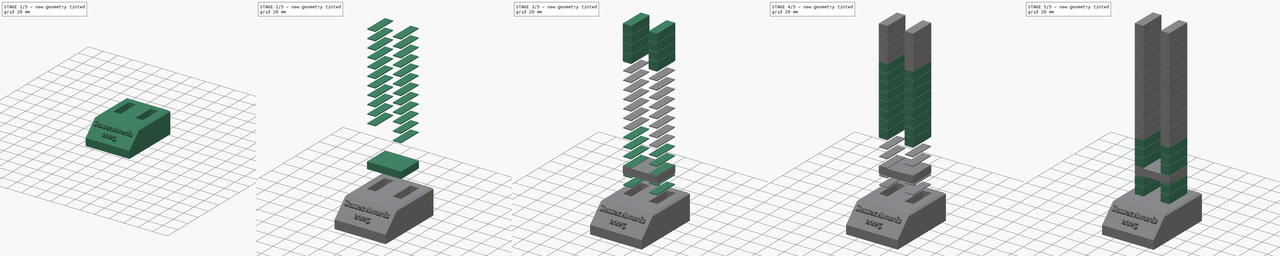
[diagram: build sequence overview — one tinted view per stage of 5, left to right]
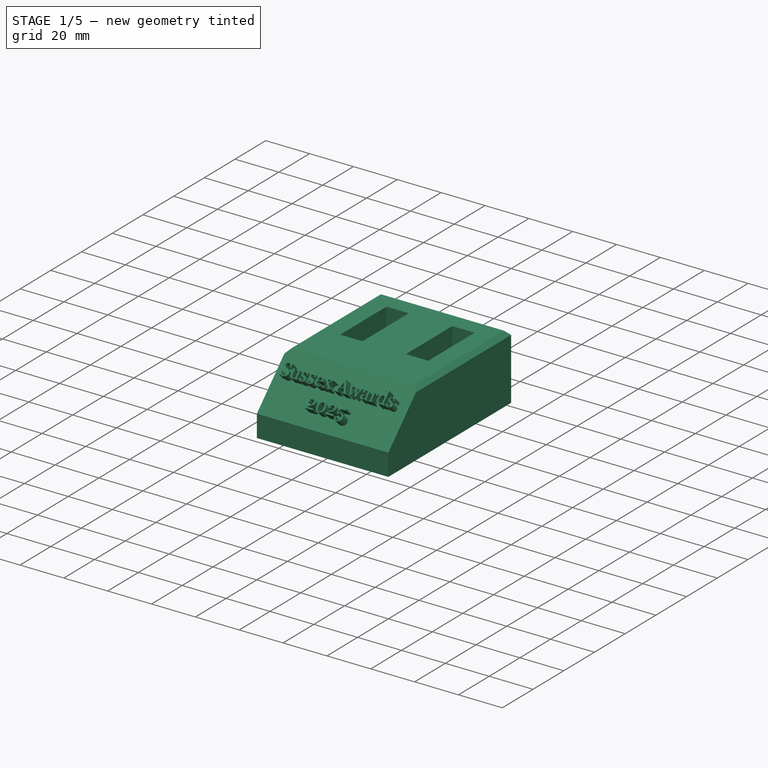
[diagram: stage 1 of 5 — iso view after this stage's code; geometry added in this stage tinted green]
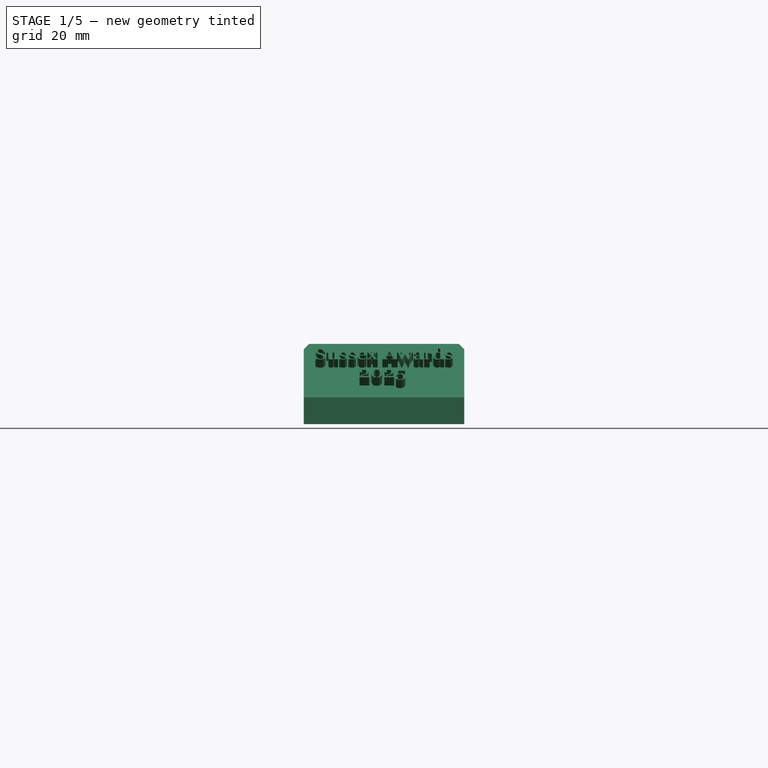
[diagram: stage 1 of 5 — front view after this stage's code; geometry added in this stage tinted green]
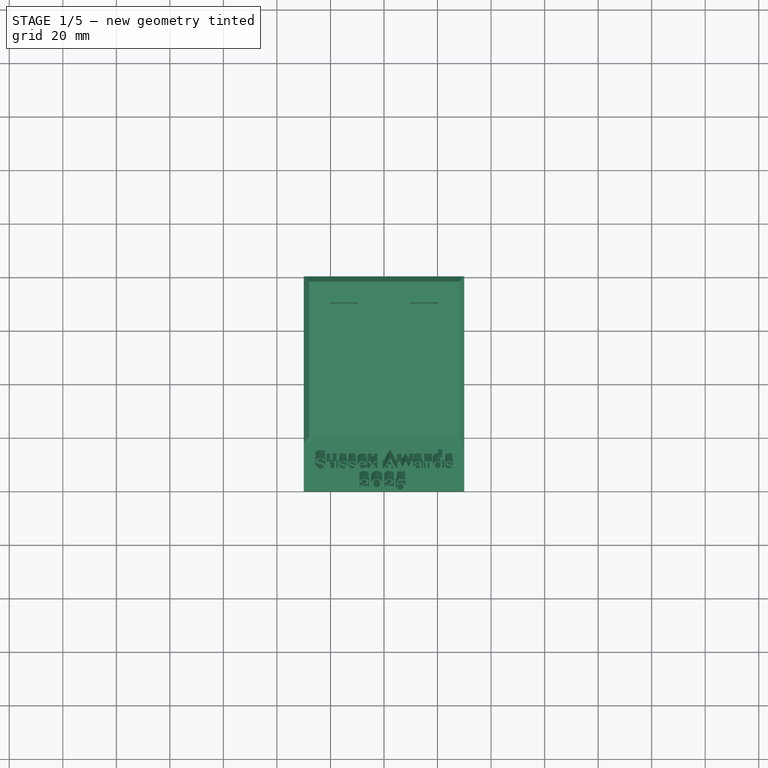
[diagram: stage 1 of 5 — top view after this stage's code; geometry added in this stage tinted green]
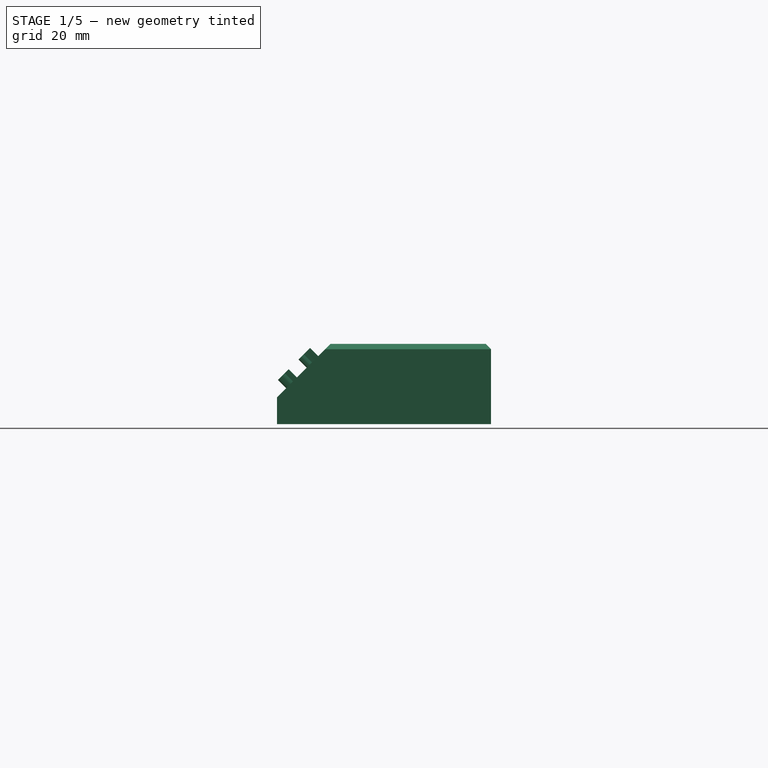
[diagram: stage 1 of 5 — right view after this stage's code; geometry added in this stage tinted green]
FCSTD DOCUMENT  (FreeCAD 1.0R39109 (Git))
Label: prize_blank
License: All rights reserved
LicenseURL: https://en.wikipedia.org/wiki/All_rights_reserved
objects: Part::Box×79, Part::Fuse×24, Part::Cut×6, Part::Part2DObjectPython×4, Part::Extrusion×4, Part::MultiFuse×3, Part::Chamfer×2, Part::Compound×2, Sketcher::SketchObject×1
note: 126 computed .brp shape members not serialized (recipe doc carries the construction recipe); baked Part::Feature solids carry a one-line shape summary decoded from their .brp

FEATURE [Part::Box] Box  label="Cube"
  AttacherType = Attacher::AttachEngine3D
  Height = 30
  Length = 60
  Placement = pos=(-10,-40,-29.5) rot=(0,0,1;0rad)
  Width = 80
FEATURE [Part::Chamfer] Chamfer
  Base = -> Box
  EdgeLinks = -> Box [Edge2,Edge6,Edge10,Edge12]
  Edges = 4 edges: [Edge2 r=2,Edge6 r=2,Edge10 r=20,Edge12 r=2]
FEATURE [Part::Box] cube
  AttacherType = Attacher::AttachEngine3D
  Height = 20
  Length = 10.2
  Width = 30.2
FEATURE [Part::Box] cube142
  AttacherType = Attacher::AttachEngine3D
  Height = 20
  Length = 10.2
  Placement = pos=(30,0,0) rot=(0,0,1;0rad)
  Width = 30.2
FEATURE [Part::Fuse] Matrix_Union  label="holes"
  Base = -> cube
  Placement = pos=(0,0,-19.5) rot=(0,0,1;0rad)
  Tool = -> cube142
FEATURE [Part::Cut] Cut
  Base = -> Chamfer
  Tool = -> Matrix_Union
FEATURE [Part::Fuse] Matrix_Union055  label="holes001"
  Base = -> cube
  Placement = pos=(0,0,-19.8) rot=(0,0,1;0rad)
  Tool = -> cube142
FEATURE [Part::Cut] Cut001
  Base = -> Cut
  Tool = -> Matrix_Union055
FEATURE [Part::Part2DObjectPython] ShapeString001  label="sussex_awards"  # Draft 2D object (typed FeaturePython)
  FontFile = <path>
  Fuse = false
  Justification = 6
  JustificationReference = 0
  KeepLeftMargin = false
  MakeFace = true
  ObliqueAngle = 0
  Placement = pos=(23.85,-91.65,0) rot=(0,0,1;0rad)
  ScaleToSize = true
  Size = 5.5
  String = Sussex Awards
  Tracking = 0
FEATURE [Part::Part2DObjectPython] ShapeString002  label="2025"  # Draft 2D object (typed FeaturePython)
  FontFile = <path>
  Fuse = false
  Justification = 6
  JustificationReference = 0
  KeepLeftMargin = false
  MakeFace = true
  ObliqueAngle = 0
  Placement = pos=(23.85,-91.65,-1) rot=(0,0,1;0rad)
  ScaleToSize = true
  Size = 5.5
  String = 2025
  Tracking = 0
FEATURE [Part::Extrusion] Extrude  label="sussex_awards_extrude"
  Base = -> ShapeString001
  Dir = (0,0,1)
  DirMode = 2
  FaceMakerClass = Part::FaceMakerBullseye
  FaceMakerMode = 3
  LengthFwd = 5
  LengthRev = 0
  Placement = pos=(-29.5,36.5,56) rot=(1,0,0;0.785398rad)
  Solid = false
  Symmetric = false
FEATURE [Part::Extrusion] Extrude001  label="2025_extrude"
  Base = -> ShapeString002
  Dir = (0,0,1)
  DirMode = 2
  FaceMakerClass = Part::FaceMakerBullseye
  FaceMakerMode = 3
  LengthFwd = 5
  LengthRev = 0
  Placement = pos=(-13,29,50) rot=(1,0,0;0.785398rad)
  Solid = false
  Symmetric = false
FEATURE [Sketcher::SketchObject] Sketch
  ArcFitTolerance = 1e-06
  AttachmentSupport = -> [Cut001]
  FullyConstrained = false
  MakeInternals = false
  MapMode = 45
  Placement = pos=(20,-30.0312,-9.53122) rot=(0.678598,0.678598,0.281085;3.68962rad)
  sketch-geometry (1):
    g0: LineSegment StartX=-2.38157 StartY=23.21 StartZ=0 EndX=-2.38157 EndY=-11.9397 EndZ=0
  constraints (2):
    c: DistanceY(g-1,g0) = 23.21
    c: Vertical(g0)
FEATURE [Part::Compound] Compound
  Links = -> [Extrude,Extrude001]
FEATURE [Part::Compound] Compound001  label="base_positive"
  Links = -> [Compound,Cut001]
FEATURE [Part::Box] Box001  label="Cube001"
  AttacherType = Attacher::AttachEngine3D
  Height = 30
  Length = 60
  Placement = pos=(-10,-40,-29.5) rot=(0,0,1;0rad)
  Width = 80
FEATURE [Part::Chamfer] Chamfer001
  Base = -> Box001
  EdgeLinks = -> Box001 [Edge2,Edge6,Edge10,Edge12]
  Edges = 4 edges: [Edge2 r=2,Edge6 r=2,Edge10 r=20,Edge12 r=2]
FEATURE [Part::Part2DObjectPython] ShapeString003  label="sussex_awards001"  # Draft 2D object (typed FeaturePython)
  FontFile = <path>
  Fuse = false
  Justification = 6
  JustificationReference = 0
  KeepLeftMargin = false
  MakeFace = true
  ObliqueAngle = 0
  Placement = pos=(23.85,-91.65,0) rot=(0,0,1;0rad)
  ScaleToSize = true
  Size = 5.5
  String = Sussex Awards
  Tracking = 0
FEATURE [Part::Extrusion] Extrude002  label="sussex_awards_extrude001"
  Base = -> ShapeString003
  Dir = (0,0,1)
  DirMode = 2
  FaceMakerClass = Part::FaceMakerBullseye
  FaceMakerMode = 3
  LengthFwd = 5
  LengthRev = 0
  Placement = pos=(-29.5,39.5,54) rot=(1,0,0;0.785398rad)
  Solid = false
  Symmetric = false
FEATURE [Part::Part2DObjectPython] ShapeString004  label="2025001"  # Draft 2D object (typed FeaturePython)
  FontFile = <path>
  Fuse = false
  Justification = 6
  JustificationReference = 0
  KeepLeftMargin = false
  MakeFace = true
  ObliqueAngle = 0
  Placement = pos=(23.85,-91.65,-1) rot=(0,0,1;0rad)
  ScaleToSize = true
  Size = 5.5
  String = 2025
  Tracking = 0
FEATURE [Part::Extrusion] Extrude003  label="2025_extrude001"
  Base = -> ShapeString004
  Dir = (0,0,1)
  DirMode = 2
  FaceMakerClass = Part::FaceMakerBullseye
  FaceMakerMode = 3
  LengthFwd = 5
  LengthRev = 0
  Placement = pos=(-13,33,48) rot=(1,0,0;0.785398rad)
  Solid = false
  Symmetric = false
FEATURE [Part::Box] cube216
  AttacherType = Attacher::AttachEngine3D
  Height = 20
  Length = 10.2
  Width = 30.2
FEATURE [Part::Box] cube217
  AttacherType = Attacher::AttachEngine3D
  Height = 20
  Length = 10.2
  Placement = pos=(30,0,0) rot=(0,0,1;0rad)
  Width = 30.2
FEATURE [Part::Fuse] Matrix_Union056  label="holes002"
  Base = -> cube216
  Placement = pos=(0,0,-19.5) rot=(0,0,1;0rad)
  Tool = -> cube217
FEATURE [Part::Cut] Cut002
  Base = -> Chamfer001
  Tool = -> Matrix_Union056
FEATURE [Part::Fuse] Matrix_Union057  label="holes003"
  Base = -> cube216
  Placement = pos=(0,0,-19.8) rot=(0,0,1;0rad)
  Tool = -> cube217
FEATURE [Part::Cut] Cut003
  Base = -> Cut002
  Tool = -> Matrix_Union057
FEATURE [Part::Cut] Cut004
  Base = -> Cut003
  Tool = -> Extrude002
FEATURE [Part::Cut] Cut005  label="base_negative"
  Base = -> Cut004
  Tool = -> Extrude003
note: 4 file-system paths scrubbed to <path> (originals preserved in the JSON sidecar)
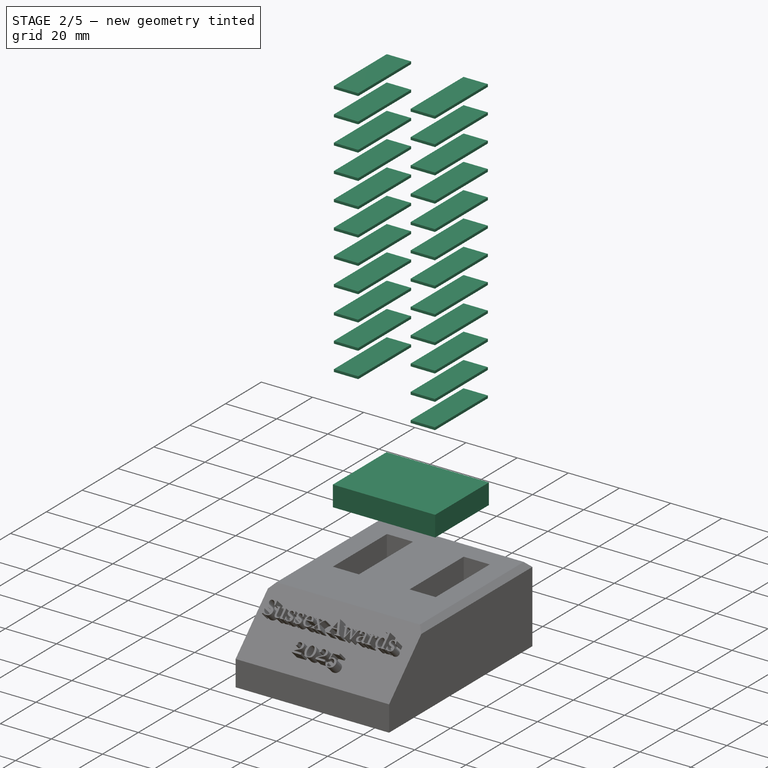
[diagram: stage 2 of 5 — iso view after this stage's code; geometry added in this stage tinted green]
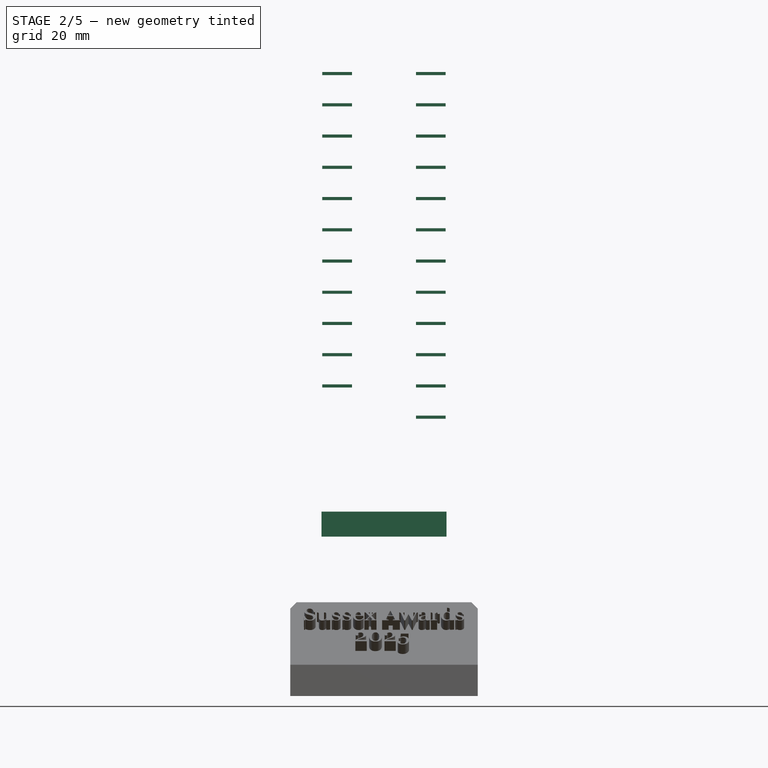
[diagram: stage 2 of 5 — front view after this stage's code; geometry added in this stage tinted green]
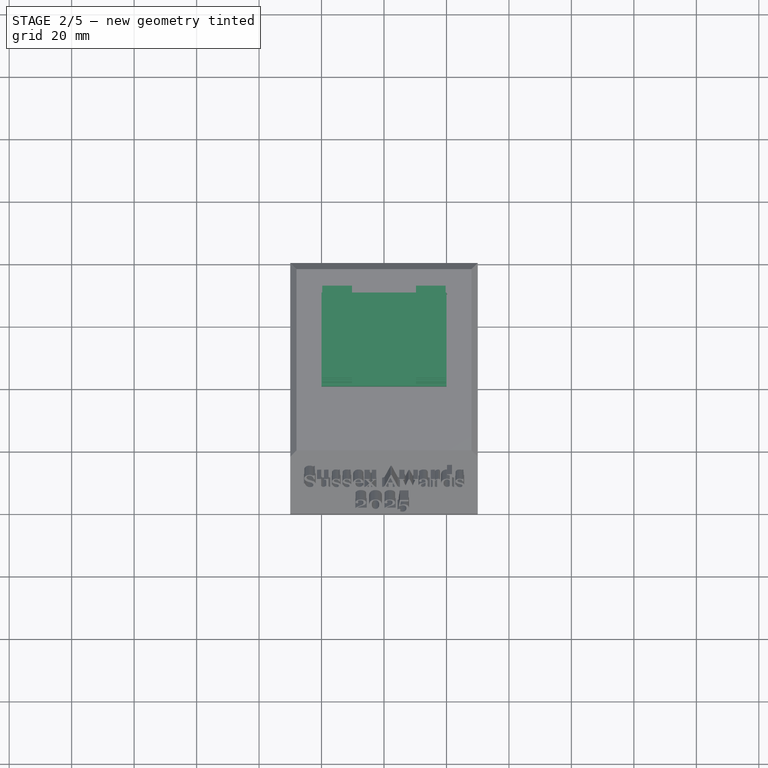
[diagram: stage 2 of 5 — top view after this stage's code; geometry added in this stage tinted green]
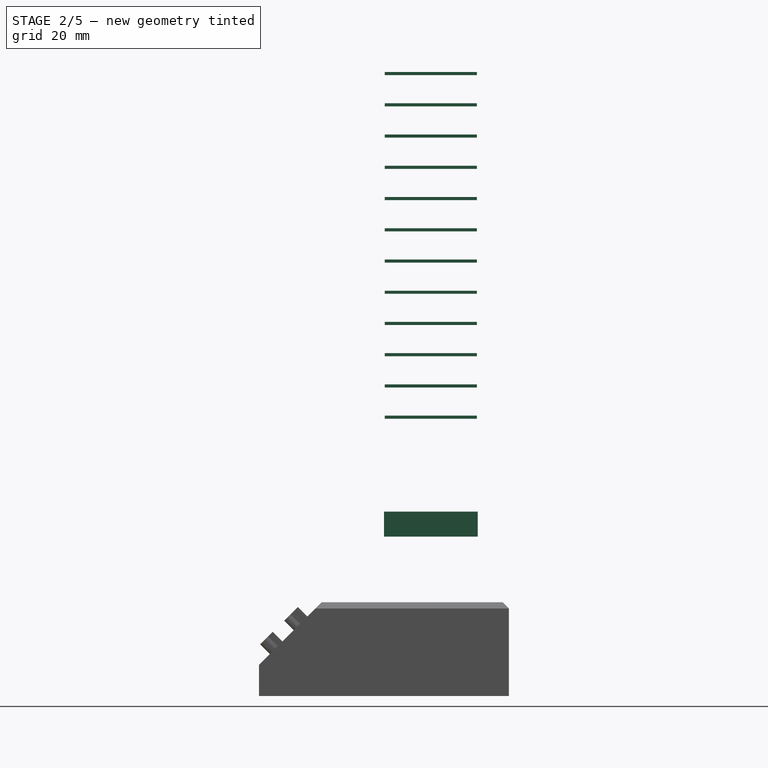
[diagram: stage 2 of 5 — right view after this stage's code; geometry added in this stage tinted green]
FEATURE [Part::Box] cube192
  AttacherType = Attacher::AttachEngine3D
  Height = 1
  Length = 9.5
  Placement = pos=(30.25,0.25,59.25) rot=(0,0,1;0rad)
  Width = 29.5
FEATURE [Part::Box] cube193
  AttacherType = Attacher::AttachEngine3D
  Height = 1
  Length = 9.5
  Placement = pos=(0.25,0.25,69.25) rot=(0,0,1;0rad)
  Width = 29.5
FEATURE [Part::Box] cube194
  AttacherType = Attacher::AttachEngine3D
  Height = 1
  Length = 9.5
  Placement = pos=(30.25,0.25,69.25) rot=(0,0,1;0rad)
  Width = 29.5
FEATURE [Part::Box] cube195
  AttacherType = Attacher::AttachEngine3D
  Height = 1
  Length = 9.5
  Placement = pos=(0.25,0.25,79.25) rot=(0,0,1;0rad)
  Width = 29.5
FEATURE [Part::Box] cube196
  AttacherType = Attacher::AttachEngine3D
  Height = 1
  Length = 9.5
  Placement = pos=(30.25,0.25,79.25) rot=(0,0,1;0rad)
  Width = 29.5
FEATURE [Part::Box] cube197
  AttacherType = Attacher::AttachEngine3D
  Height = 1
  Length = 9.5
  Placement = pos=(0.25,0.25,89.25) rot=(0,0,1;0rad)
  Width = 29.5
FEATURE [Part::Box] cube198
  AttacherType = Attacher::AttachEngine3D
  Height = 1
  Length = 9.5
  Placement = pos=(30.25,0.25,89.25) rot=(0,0,1;0rad)
  Width = 29.5
FEATURE [Part::Box] cube199
  AttacherType = Attacher::AttachEngine3D
  Height = 1
  Length = 9.5
  Placement = pos=(0.25,0.25,99.25) rot=(0,0,1;0rad)
  Width = 29.5
FEATURE [Part::Box] cube200
  AttacherType = Attacher::AttachEngine3D
  Height = 1
  Length = 9.5
  Placement = pos=(30.25,0.25,99.25) rot=(0,0,1;0rad)
  Width = 29.5
FEATURE [Part::Box] cube201
  AttacherType = Attacher::AttachEngine3D
  Height = 1
  Length = 9.5
  Placement = pos=(0.25,0.25,109.25) rot=(0,0,1;0rad)
  Width = 29.5
FEATURE [Part::Box] cube202
  AttacherType = Attacher::AttachEngine3D
  Height = 1
  Length = 9.5
  Placement = pos=(30.25,0.25,109.25) rot=(0,0,1;0rad)
  Width = 29.5
FEATURE [Part::Box] cube203
  AttacherType = Attacher::AttachEngine3D
  Height = 1
  Length = 9.5
  Placement = pos=(0.25,0.25,119.25) rot=(0,0,1;0rad)
  Width = 29.5
FEATURE [Part::Box] cube204
  AttacherType = Attacher::AttachEngine3D
  Height = 1
  Length = 9.5
  Placement = pos=(30.25,0.25,119.25) rot=(0,0,1;0rad)
  Width = 29.5
FEATURE [Part::Box] cube205
  AttacherType = Attacher::AttachEngine3D
  Height = 1
  Length = 9.5
  Placement = pos=(0.25,0.25,129.25) rot=(0,0,1;0rad)
  Width = 29.5
FEATURE [Part::Box] cube206
  AttacherType = Attacher::AttachEngine3D
  Height = 1
  Length = 9.5
  Placement = pos=(30.25,0.25,129.25) rot=(0,0,1;0rad)
  Width = 29.5
FEATURE [Part::Box] cube207
  AttacherType = Attacher::AttachEngine3D
  Height = 1
  Length = 9.5
  Placement = pos=(0.25,0.25,139.25) rot=(0,0,1;0rad)
  Width = 29.5
FEATURE [Part::Box] cube208
  AttacherType = Attacher::AttachEngine3D
  Height = 1
  Length = 9.5
  Placement = pos=(30.25,0.25,139.25) rot=(0,0,1;0rad)
  Width = 29.5
FEATURE [Part::Box] cube209
  AttacherType = Attacher::AttachEngine3D
  Height = 1
  Length = 9.5
  Placement = pos=(0.25,0.25,149.25) rot=(0,0,1;0rad)
  Width = 29.5
FEATURE [Part::Box] cube210
  AttacherType = Attacher::AttachEngine3D
  Height = 1
  Length = 9.5
  Placement = pos=(30.25,0.25,149.25) rot=(0,0,1;0rad)
  Width = 29.5
FEATURE [Part::Box] cube211
  AttacherType = Attacher::AttachEngine3D
  Height = 1
  Length = 9.5
  Placement = pos=(0.25,0.25,159.25) rot=(0,0,1;0rad)
  Width = 29.5
FEATURE [Part::Box] cube212
  AttacherType = Attacher::AttachEngine3D
  Height = 1
  Length = 9.5
  Placement = pos=(30.25,0.25,159.25) rot=(0,0,1;0rad)
  Width = 29.5
FEATURE [Part::Box] cube213
  AttacherType = Attacher::AttachEngine3D
  Height = 1
  Length = 9.5
  Placement = pos=(0.25,0.25,169.25) rot=(0,0,1;0rad)
  Width = 29.5
FEATURE [Part::Box] cube214
  AttacherType = Attacher::AttachEngine3D
  Height = 1
  Length = 9.5
  Placement = pos=(30.25,0.25,169.25) rot=(0,0,1;0rad)
  Width = 29.5
FEATURE [Part::Box] cube215
  AttacherType = Attacher::AttachEngine3D
  Height = 8
  Length = 40
  Placement = pos=(0,0,21.5) rot=(0,0,1;0rad)
  Width = 30
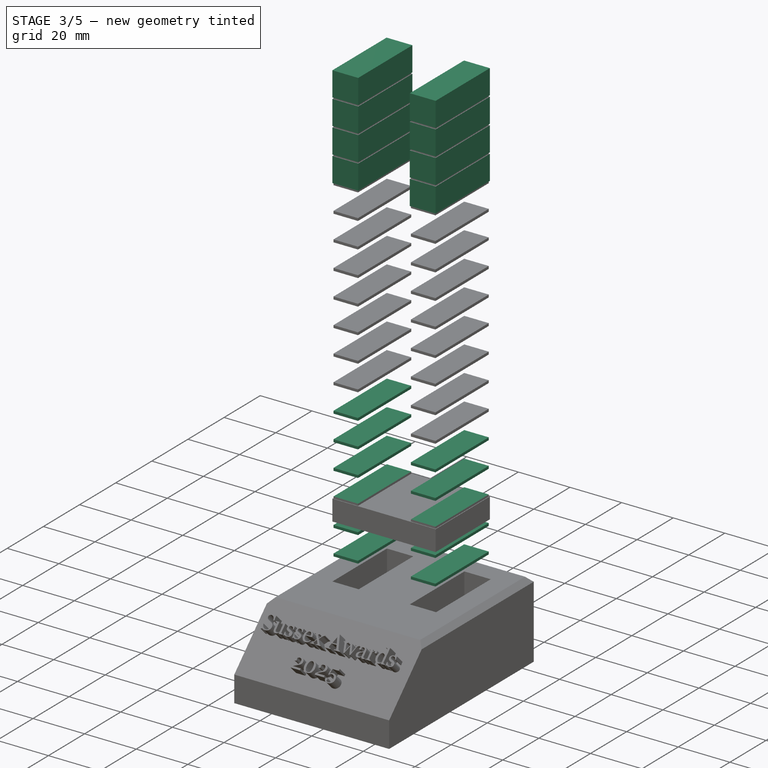
[diagram: stage 3 of 5 — iso view after this stage's code; geometry added in this stage tinted green]
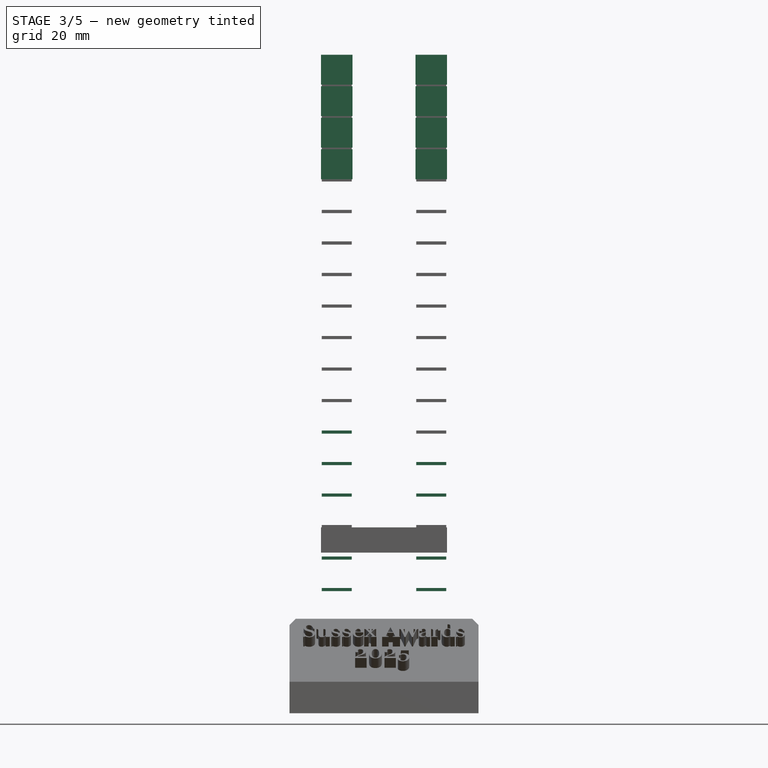
[diagram: stage 3 of 5 — front view after this stage's code; geometry added in this stage tinted green]
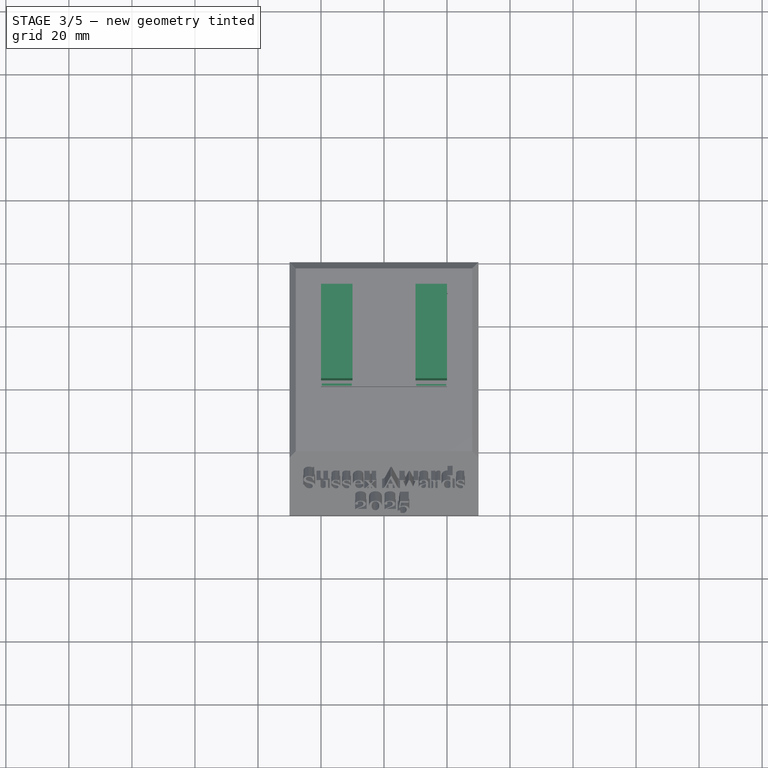
[diagram: stage 3 of 5 — top view after this stage's code; geometry added in this stage tinted green]
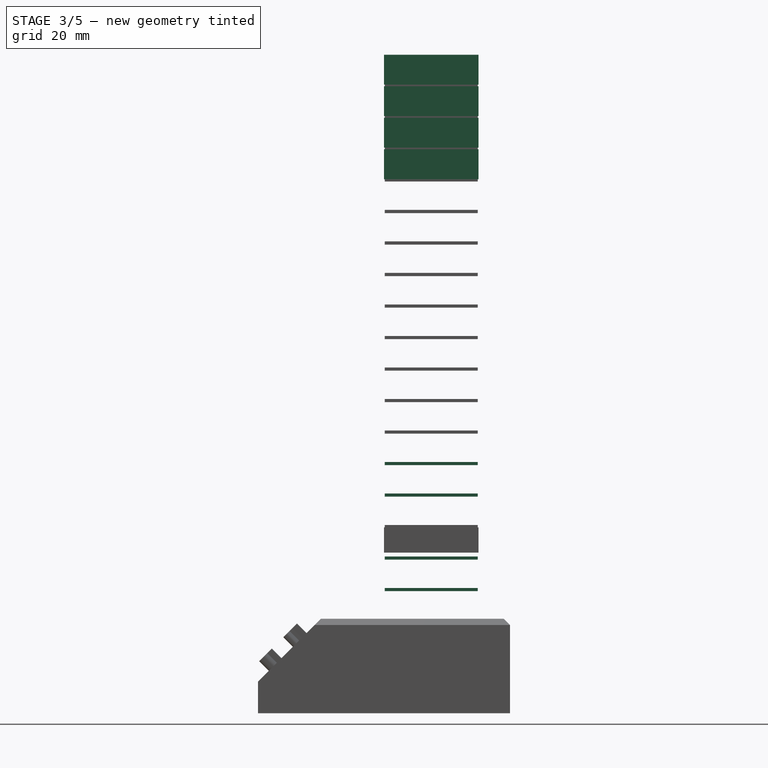
[diagram: stage 3 of 5 — right view after this stage's code; geometry added in this stage tinted green]
FEATURE [Part::Box] cube173
  AttacherType = Attacher::AttachEngine3D
  Height = 9.5
  Length = 10
  Width = 30
FEATURE [Part::Box] cube174
  AttacherType = Attacher::AttachEngine3D
  Height = 9.5
  Length = 10
  Placement = pos=(30,0,0) rot=(0,0,1;0rad)
  Width = 30
FEATURE [Part::Fuse] Matrix_Union051
  Base = -> cube173
  Placement = pos=(0,0,140) rot=(0,0,1;0rad)
  Tool = -> cube174
FEATURE [Part::Box] cube175
  AttacherType = Attacher::AttachEngine3D
  Height = 9.5
  Length = 10
  Width = 30
FEATURE [Part::Box] cube176
  AttacherType = Attacher::AttachEngine3D
  Height = 9.5
  Length = 10
  Placement = pos=(30,0,0) rot=(0,0,1;0rad)
  Width = 30
FEATURE [Part::Fuse] Matrix_Union052
  Base = -> cube175
  Placement = pos=(0,0,150) rot=(0,0,1;0rad)
  Tool = -> cube176
FEATURE [Part::Box] cube177
  AttacherType = Attacher::AttachEngine3D
  Height = 9.5
  Length = 10
  Width = 30
FEATURE [Part::Box] cube178
  AttacherType = Attacher::AttachEngine3D
  Height = 9.5
  Length = 10
  Placement = pos=(30,0,0) rot=(0,0,1;0rad)
  Width = 30
FEATURE [Part::Fuse] Matrix_Union053
  Base = -> cube177
  Placement = pos=(0,0,160) rot=(0,0,1;0rad)
  Tool = -> cube178
FEATURE [Part::Box] cube179
  AttacherType = Attacher::AttachEngine3D
  Height = 9.5
  Length = 10
  Width = 30
FEATURE [Part::Box] cube180
  AttacherType = Attacher::AttachEngine3D
  Height = 9.5
  Length = 10
  Placement = pos=(30,0,0) rot=(0,0,1;0rad)
  Width = 30
FEATURE [Part::Fuse] Matrix_Union054
  Base = -> cube179
  Placement = pos=(0,0,170) rot=(0,0,1;0rad)
  Tool = -> cube180
FEATURE [Part::Box] cube181
  AttacherType = Attacher::AttachEngine3D
  Height = 1
  Length = 9.5
  Placement = pos=(0.25,0.25,9.25) rot=(0,0,1;0rad)
  Width = 29.5
FEATURE [Part::Box] cube182
  AttacherType = Attacher::AttachEngine3D
  Height = 1
  Length = 9.5
  Placement = pos=(30.25,0.25,9.25) rot=(0,0,1;0rad)
  Width = 29.5
FEATURE [Part::Box] cube183
  AttacherType = Attacher::AttachEngine3D
  Height = 1
  Length = 9.5
  Placement = pos=(0.25,0.25,19.25) rot=(0,0,1;0rad)
  Width = 29.5
FEATURE [Part::Box] cube184
  AttacherType = Attacher::AttachEngine3D
  Height = 1
  Length = 9.5
  Placement = pos=(30.25,0.25,19.25) rot=(0,0,1;0rad)
  Width = 29.5
FEATURE [Part::Box] cube185
  AttacherType = Attacher::AttachEngine3D
  Height = 1
  Length = 9.5
  Placement = pos=(0.25,0.25,29.25) rot=(0,0,1;0rad)
  Width = 29.5
FEATURE [Part::Box] cube186
  AttacherType = Attacher::AttachEngine3D
  Height = 1
  Length = 9.5
  Placement = pos=(30.25,0.25,29.25) rot=(0,0,1;0rad)
  Width = 29.5
FEATURE [Part::Box] cube187
  AttacherType = Attacher::AttachEngine3D
  Height = 1
  Length = 9.5
  Placement = pos=(0.25,0.25,39.25) rot=(0,0,1;0rad)
  Width = 29.5
FEATURE [Part::Box] cube188
  AttacherType = Attacher::AttachEngine3D
  Height = 1
  Length = 9.5
  Placement = pos=(30.25,0.25,39.25) rot=(0,0,1;0rad)
  Width = 29.5
FEATURE [Part::Box] cube189
  AttacherType = Attacher::AttachEngine3D
  Height = 1
  Length = 9.5
  Placement = pos=(0.25,0.25,49.25) rot=(0,0,1;0rad)
  Width = 29.5
FEATURE [Part::Box] cube190
  AttacherType = Attacher::AttachEngine3D
  Height = 1
  Length = 9.5
  Placement = pos=(30.25,0.25,49.25) rot=(0,0,1;0rad)
  Width = 29.5
FEATURE [Part::Box] cube191
  AttacherType = Attacher::AttachEngine3D
  Height = 1
  Length = 9.5
  Placement = pos=(0.25,0.25,59.25) rot=(0,0,1;0rad)
  Width = 29.5
FEATURE [Part::MultiFuse] Group005
  Shapes = -> [cube181,cube182,cube183,cube184,cube185,cube186,cube187,cube188,cube189,cube190,cube191,cube192,cube193,cube194,cube195,cube196,cube197,cube198,cube199,cube200,cube201,cube202,cube203,cube204,cube205,cube206,cube207,cube208,cube209,cube210,cube211,cube212,cube213,cube214]
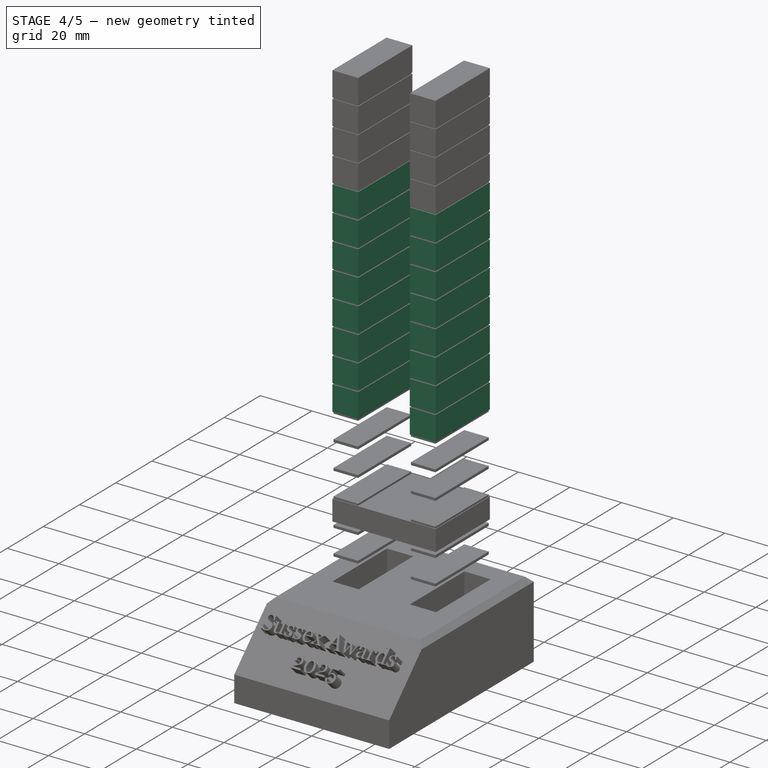
[diagram: stage 4 of 5 — iso view after this stage's code; geometry added in this stage tinted green]
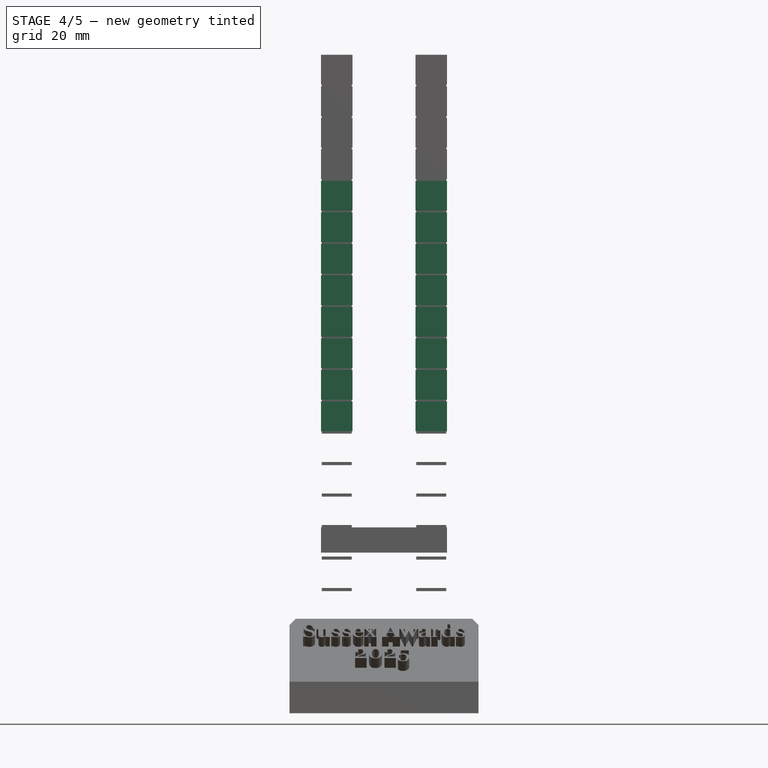
[diagram: stage 4 of 5 — front view after this stage's code; geometry added in this stage tinted green]
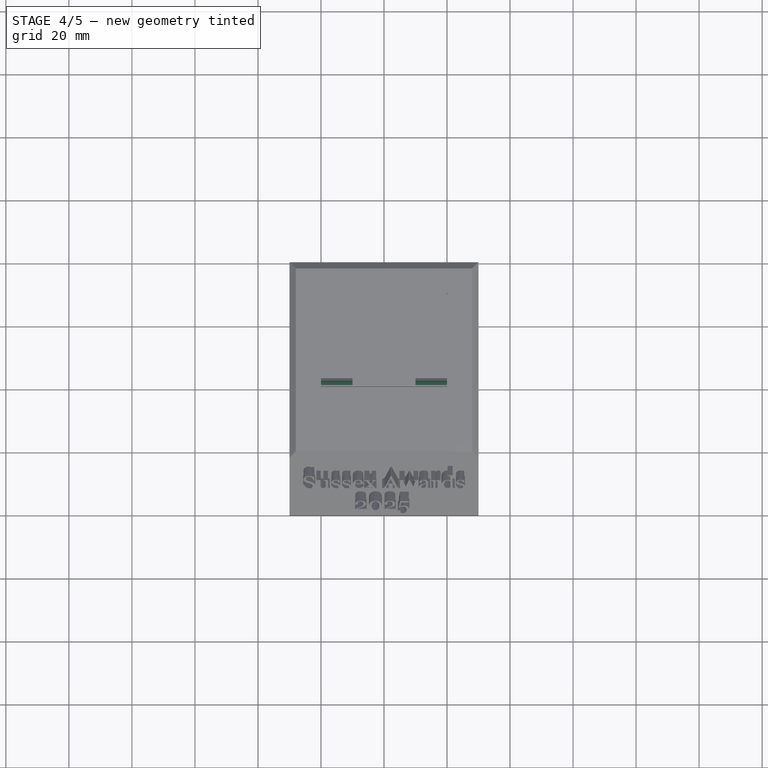
[diagram: stage 4 of 5 — top view after this stage's code; geometry added in this stage tinted green]
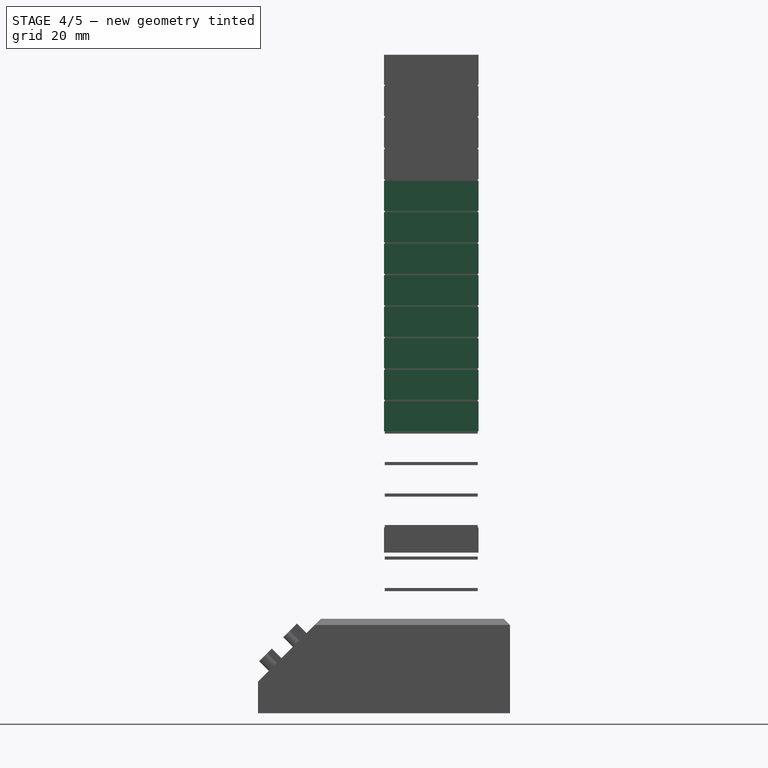
[diagram: stage 4 of 5 — right view after this stage's code; geometry added in this stage tinted green]
FEATURE [Part::Box] cube157
  AttacherType = Attacher::AttachEngine3D
  Height = 9.5
  Length = 10
  Width = 30
FEATURE [Part::Box] cube158
  AttacherType = Attacher::AttachEngine3D
  Height = 9.5
  Length = 10
  Placement = pos=(30,0,0) rot=(0,0,1;0rad)
  Width = 30
FEATURE [Part::Fuse] Matrix_Union043
  Base = -> cube157
  Placement = pos=(0,0,60) rot=(0,0,1;0rad)
  Tool = -> cube158
FEATURE [Part::Box] cube159
  AttacherType = Attacher::AttachEngine3D
  Height = 9.5
  Length = 10
  Width = 30
FEATURE [Part::Box] cube160
  AttacherType = Attacher::AttachEngine3D
  Height = 9.5
  Length = 10
  Placement = pos=(30,0,0) rot=(0,0,1;0rad)
  Width = 30
FEATURE [Part::Fuse] Matrix_Union044
  Base = -> cube159
  Placement = pos=(0,0,70) rot=(0,0,1;0rad)
  Tool = -> cube160
FEATURE [Part::Box] cube161
  AttacherType = Attacher::AttachEngine3D
  Height = 9.5
  Length = 10
  Width = 30
FEATURE [Part::Box] cube162
  AttacherType = Attacher::AttachEngine3D
  Height = 9.5
  Length = 10
  Placement = pos=(30,0,0) rot=(0,0,1;0rad)
  Width = 30
FEATURE [Part::Fuse] Matrix_Union045
  Base = -> cube161
  Placement = pos=(0,0,80) rot=(0,0,1;0rad)
  Tool = -> cube162
FEATURE [Part::Box] cube163
  AttacherType = Attacher::AttachEngine3D
  Height = 9.5
  Length = 10
  Width = 30
FEATURE [Part::Box] cube164
  AttacherType = Attacher::AttachEngine3D
  Height = 9.5
  Length = 10
  Placement = pos=(30,0,0) rot=(0,0,1;0rad)
  Width = 30
FEATURE [Part::Fuse] Matrix_Union046
  Base = -> cube163
  Placement = pos=(0,0,90) rot=(0,0,1;0rad)
  Tool = -> cube164
FEATURE [Part::Box] cube165
  AttacherType = Attacher::AttachEngine3D
  Height = 9.5
  Length = 10
  Width = 30
FEATURE [Part::Box] cube166
  AttacherType = Attacher::AttachEngine3D
  Height = 9.5
  Length = 10
  Placement = pos=(30,0,0) rot=(0,0,1;0rad)
  Width = 30
FEATURE [Part::Fuse] Matrix_Union047
  Base = -> cube165
  Placement = pos=(0,0,100) rot=(0,0,1;0rad)
  Tool = -> cube166
FEATURE [Part::Box] cube167
  AttacherType = Attacher::AttachEngine3D
  Height = 9.5
  Length = 10
  Width = 30
FEATURE [Part::Box] cube168
  AttacherType = Attacher::AttachEngine3D
  Height = 9.5
  Length = 10
  Placement = pos=(30,0,0) rot=(0,0,1;0rad)
  Width = 30
FEATURE [Part::Fuse] Matrix_Union048
  Base = -> cube167
  Placement = pos=(0,0,110) rot=(0,0,1;0rad)
  Tool = -> cube168
FEATURE [Part::Box] cube169
  AttacherType = Attacher::AttachEngine3D
  Height = 9.5
  Length = 10
  Width = 30
FEATURE [Part::Box] cube170
  AttacherType = Attacher::AttachEngine3D
  Height = 9.5
  Length = 10
  Placement = pos=(30,0,0) rot=(0,0,1;0rad)
  Width = 30
FEATURE [Part::Fuse] Matrix_Union049
  Base = -> cube169
  Placement = pos=(0,0,120) rot=(0,0,1;0rad)
  Tool = -> cube170
FEATURE [Part::Box] cube171
  AttacherType = Attacher::AttachEngine3D
  Height = 9.5
  Length = 10
  Width = 30
FEATURE [Part::Box] cube172
  AttacherType = Attacher::AttachEngine3D
  Height = 9.5
  Length = 10
  Placement = pos=(30,0,0) rot=(0,0,1;0rad)
  Width = 30
FEATURE [Part::Fuse] Matrix_Union050
  Base = -> cube171
  Placement = pos=(0,0,130) rot=(0,0,1;0rad)
  Tool = -> cube172
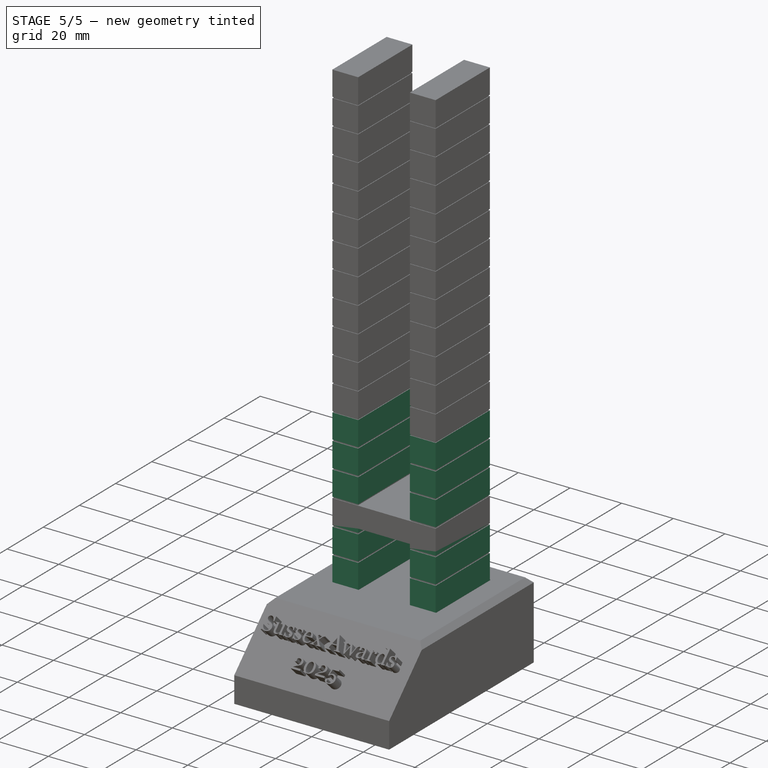
[diagram: stage 5 of 5 — iso view after this stage's code; geometry added in this stage tinted green]
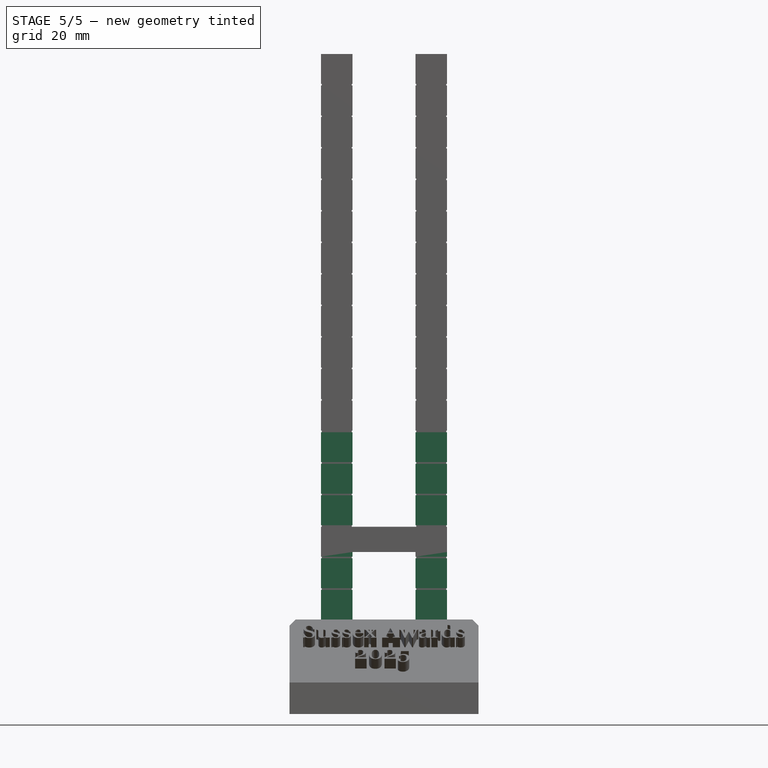
[diagram: stage 5 of 5 — front view after this stage's code; geometry added in this stage tinted green]
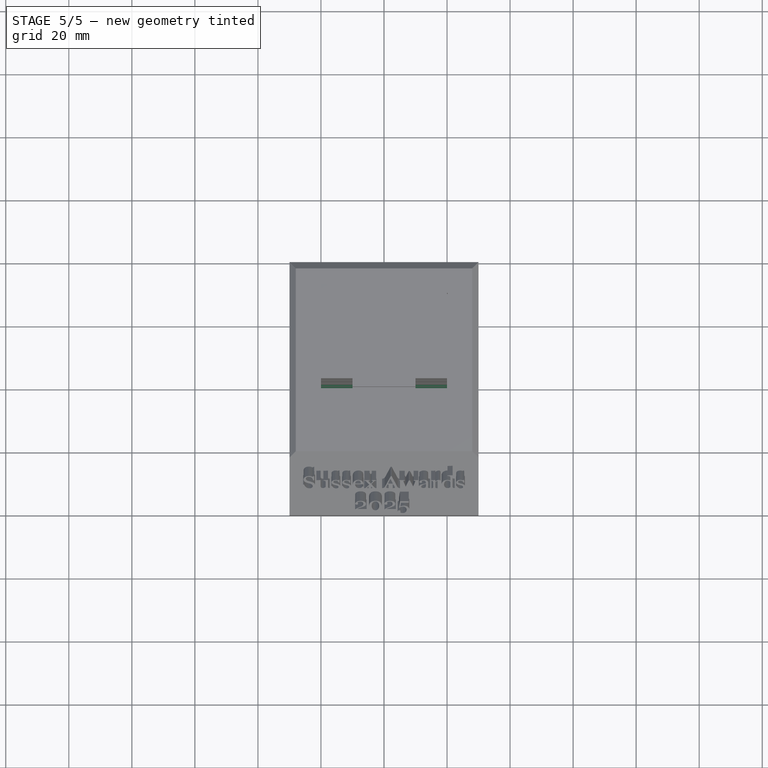
[diagram: stage 5 of 5 — top view after this stage's code; geometry added in this stage tinted green]
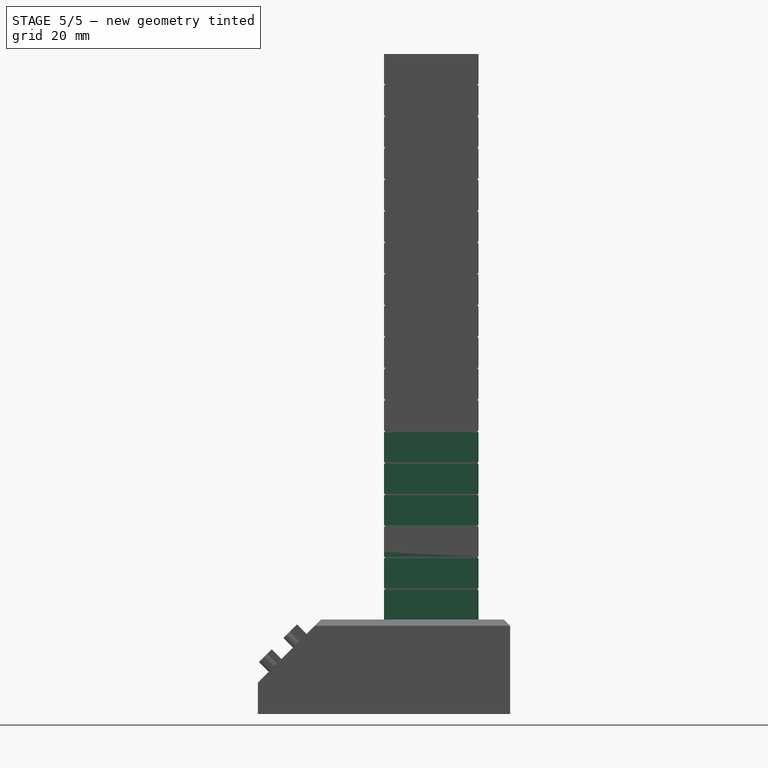
[diagram: stage 5 of 5 — right view after this stage's code; geometry added in this stage tinted green]
FEATURE [Part::Box] cube143
  AttacherType = Attacher::AttachEngine3D
  Height = 20
  Length = 10
  Width = 30
FEATURE [Part::Box] cube144
  AttacherType = Attacher::AttachEngine3D
  Height = 20
  Length = 10
  Placement = pos=(30,0,0) rot=(0,0,1;0rad)
  Width = 30
FEATURE [Part::Fuse] Matrix_Union036
  Base = -> cube143
  Tool = -> cube144
FEATURE [Part::Box] cube145
  AttacherType = Attacher::AttachEngine3D
  Height = 9.5
  Length = 10
  Width = 30
FEATURE [Part::Box] cube146
  AttacherType = Attacher::AttachEngine3D
  Height = 9.5
  Length = 10
  Placement = pos=(30,0,0) rot=(0,0,1;0rad)
  Width = 30
FEATURE [Part::Fuse] Matrix_Union037
  Base = -> cube145
  Tool = -> cube146
FEATURE [Part::Box] cube147
  AttacherType = Attacher::AttachEngine3D
  Height = 9.5
  Length = 10
  Width = 30
FEATURE [Part::Box] cube148
  AttacherType = Attacher::AttachEngine3D
  Height = 9.5
  Length = 10
  Placement = pos=(30,0,0) rot=(0,0,1;0rad)
  Width = 30
FEATURE [Part::Fuse] Matrix_Union038
  Base = -> cube147
  Placement = pos=(0,0,10) rot=(0,0,1;0rad)
  Tool = -> cube148
FEATURE [Part::Box] cube149
  AttacherType = Attacher::AttachEngine3D
  Height = 9.5
  Length = 10
  Width = 30
FEATURE [Part::Box] cube150
  AttacherType = Attacher::AttachEngine3D
  Height = 9.5
  Length = 10
  Placement = pos=(30,0,0) rot=(0,0,1;0rad)
  Width = 30
FEATURE [Part::Fuse] Matrix_Union039
  Base = -> cube149
  Placement = pos=(0,0,20) rot=(0,0,1;0rad)
  Tool = -> cube150
FEATURE [Part::Box] cube151
  AttacherType = Attacher::AttachEngine3D
  Height = 9.5
  Length = 10
  Width = 30
FEATURE [Part::Box] cube152
  AttacherType = Attacher::AttachEngine3D
  Height = 9.5
  Length = 10
  Placement = pos=(30,0,0) rot=(0,0,1;0rad)
  Width = 30
FEATURE [Part::Fuse] Matrix_Union040
  Base = -> cube151
  Placement = pos=(0,0,30) rot=(0,0,1;0rad)
  Tool = -> cube152
FEATURE [Part::Box] cube153
  AttacherType = Attacher::AttachEngine3D
  Height = 9.5
  Length = 10
  Width = 30
FEATURE [Part::Box] cube154
  AttacherType = Attacher::AttachEngine3D
  Height = 9.5
  Length = 10
  Placement = pos=(30,0,0) rot=(0,0,1;0rad)
  Width = 30
FEATURE [Part::Fuse] Matrix_Union041
  Base = -> cube153
  Placement = pos=(0,0,40) rot=(0,0,1;0rad)
  Tool = -> cube154
FEATURE [Part::Box] cube155
  AttacherType = Attacher::AttachEngine3D
  Height = 9.5
  Length = 10
  Width = 30
FEATURE [Part::Box] cube156
  AttacherType = Attacher::AttachEngine3D
  Height = 9.5
  Length = 10
  Placement = pos=(30,0,0) rot=(0,0,1;0rad)
  Width = 30
FEATURE [Part::Fuse] Matrix_Union042
  Base = -> cube155
  Placement = pos=(0,0,50) rot=(0,0,1;0rad)
  Tool = -> cube156
FEATURE [Part::MultiFuse] Group
  Shapes = -> [Matrix_Union037,Matrix_Union038,Matrix_Union039,Matrix_Union040,Matrix_Union041,Matrix_Union042,Matrix_Union043,Matrix_Union044,Matrix_Union045,Matrix_Union046,Matrix_Union047,Matrix_Union048,Matrix_Union049,Matrix_Union050,Matrix_Union051,Matrix_Union052,Matrix_Union053,Matrix_Union054]
FEATURE [Part::MultiFuse] Group006
  Placement = pos=(0,0,20) rot=(0,0,1;0rad)
  Shapes = -> [Group,Group005,cube215]
FEATURE [Part::Fuse] union  label="tower"
  Base = -> Matrix_Union036
  Placement = pos=(0,0,-19.6) rot=(0,0,1;0rad)
  Tool = -> Group006
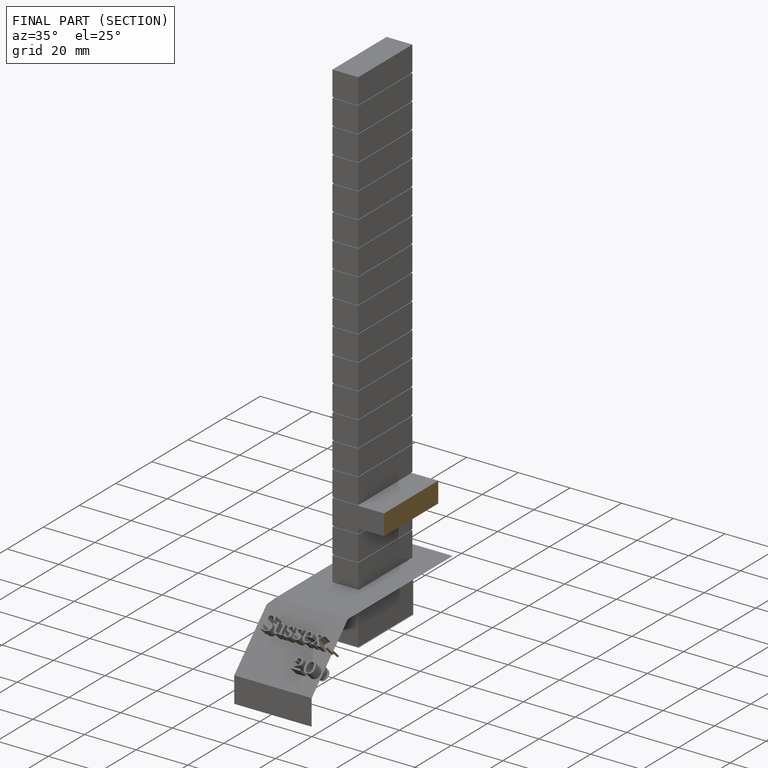
[diagram: finished part — half-section view (interior)]
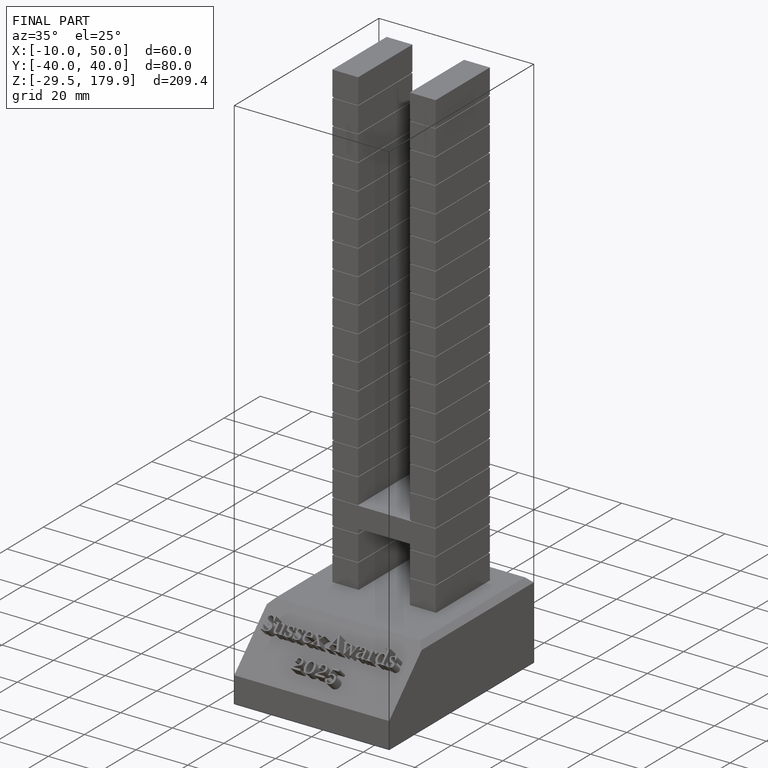
[diagram: finished part — iso view with bounding-box wireframe]
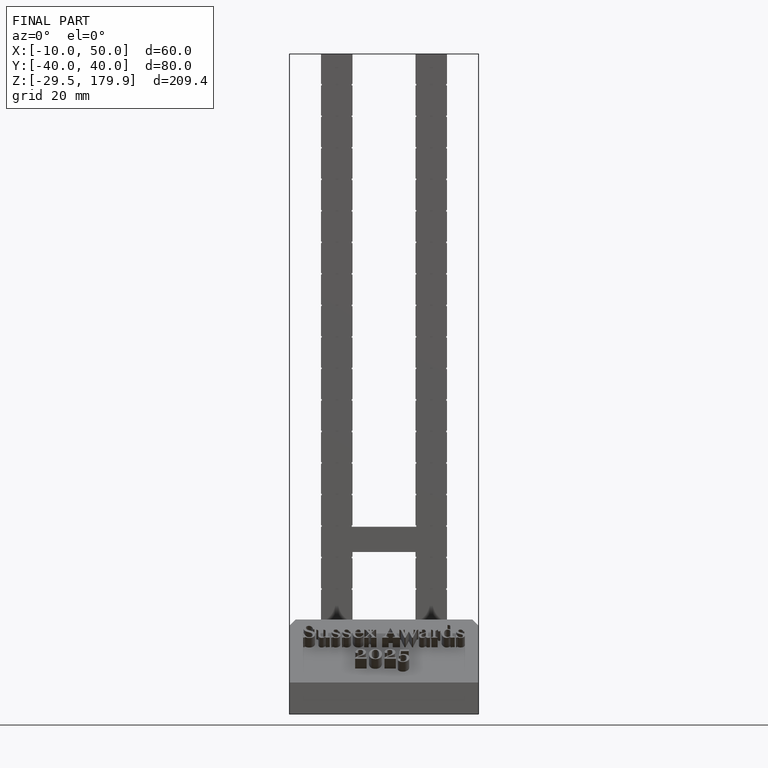
[diagram: finished part — front view with bounding-box wireframe]
